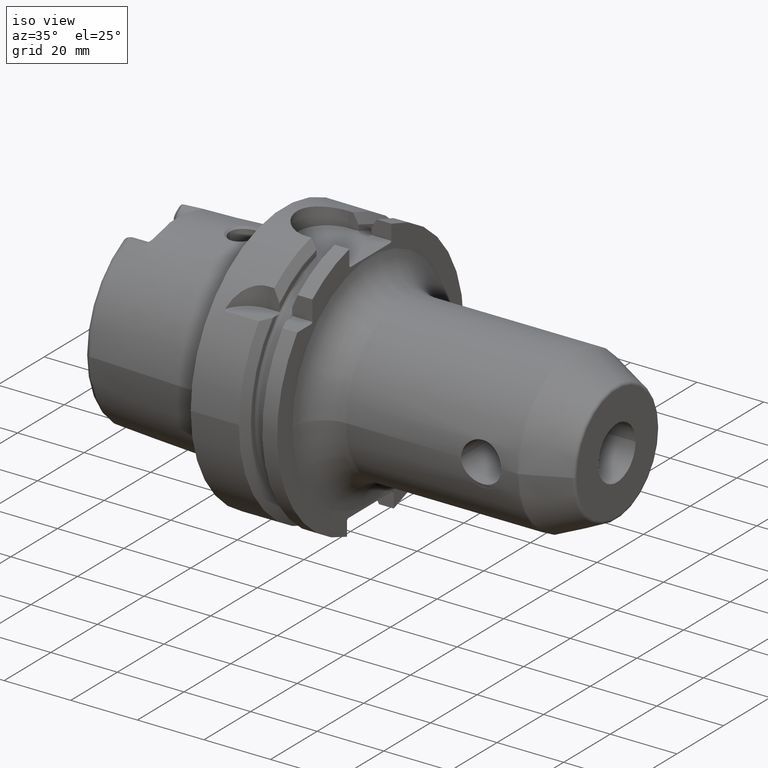
[diagram: clean part render]
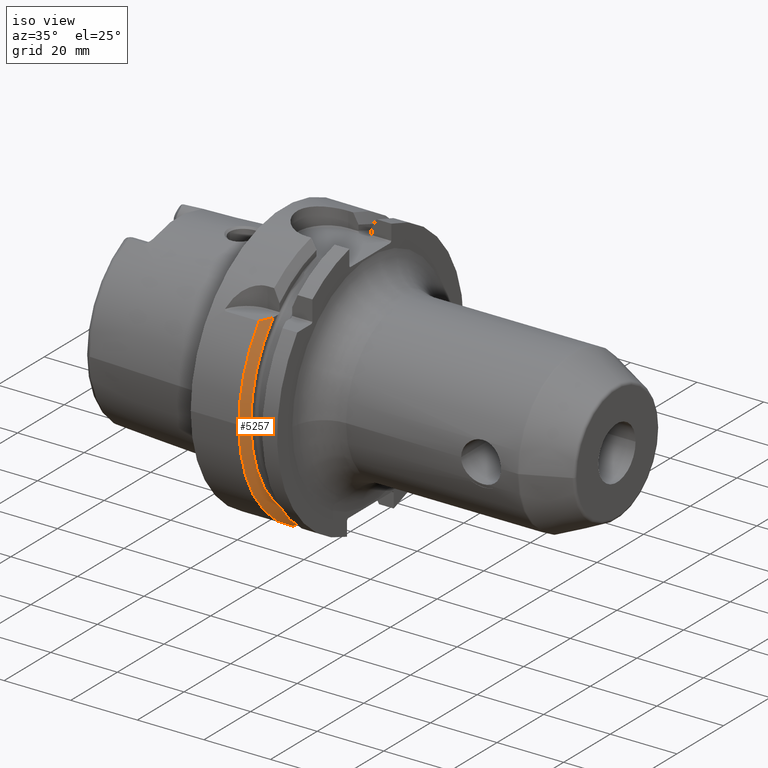
[diagram: same view with one face highlighted and labeled with its STEP entity id]
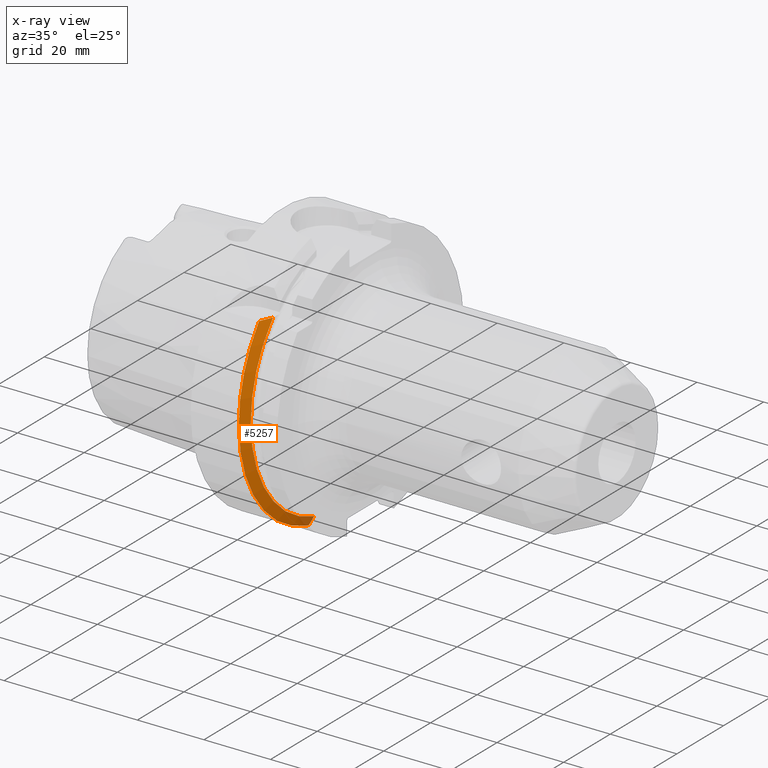
[diagram: x-ray of the same camera — body ghosted, the highlighted face saturated]
A machine part, iso view. The second image highlights one B-rep face of the part: STEP entity #5257.
The next image is the same camera in x-ray: the body ghosted, the highlighted face saturated — about 4% of this face is hidden behind the body in this view.
In plain terms, the highlighted conical surface has half-angle 60 deg.
Its self-contained STEP definition (entity closure, byte-faithful):
#1198=CARTESIAN_POINT('',(1.446372960121E1,0.E0,0.E0));
#1199=DIRECTION('',(1.E0,0.E0,0.E0));
#1200=DIRECTION('',(0.E0,-7.836124281174E-1,6.2125E-1));
#1201=AXIS2_PLACEMENT_3D('',#1198,#1199,#1200);
#1318=CARTESIAN_POINT('',(1.446372960121E1,0.E0,0.E0));
#1319=DIRECTION('',(1.E0,0.E0,0.E0));
#1320=DIRECTION('',(0.E0,-1.E0,0.E0));
#1321=AXIS2_PLACEMENT_3D('',#1318,#1319,#1320);
#1657=CARTESIAN_POINT('',(1.60875E1,0.E0,0.E0));
#1658=DIRECTION('',(1.E0,0.E0,0.E0));
#1659=DIRECTION('',(0.E0,-7.439507540774E-1,6.682344465138E-1));
#1660=AXIS2_PLACEMENT_3D('',#1657,#1658,#1659);
#1832=CARTESIAN_POINT('',(1.60875E1,-1.0021E1,-3.581191454645E1));
#1833=CARTESIAN_POINT('',(1.591452127694E1,-1.0021E1,-3.612303123567E1));
#1834=CARTESIAN_POINT('',(1.556360737199E1,-1.0021E1,-3.675359013845E1));
#1835=CARTESIAN_POINT('',(1.502255047087E1,-1.0021E1,-3.772406589711E1));
#1836=CARTESIAN_POINT('',(1.465167740260E1,-1.0021E1,-3.838814683469E1));
#1837=CARTESIAN_POINT('',(1.446372960121E1,-1.0021E1,-3.872440521170E1));
#1900=CARTESIAN_POINT('',(1.60875E1,-2.766570375902E1,2.485E1));
#1901=CARTESIAN_POINT('',(1.592149754546E1,-2.805218725119E1,2.485E1));
#1902=CARTESIAN_POINT('',(1.557999967762E1,-2.884000309139E1,2.485E1));
#1903=CARTESIAN_POINT('',(1.504046925873E1,-3.006277679610E1,2.485E1));
#1904=CARTESIAN_POINT('',(1.465940923842E1,-3.091197836735E1,2.485E1));
#1905=CARTESIAN_POINT('',(1.446372960121E1,-3.134449712469E1,2.485E1));
#3157=CARTESIAN_POINT('',(1.60875E1,-1.0021E1,-3.581191454645E1));
#3159=VERTEX_POINT('',#3157);
#3165=VERTEX_POINT('',#1837);
#3202=CARTESIAN_POINT('',(1.60875E1,-2.766570375902E1,2.485E1));
#3204=VERTEX_POINT('',#3202);
#3212=VERTEX_POINT('',#1905);
#3309=CARTESIAN_POINT('',(1.446372960121E1,-4.E1,0.E0));
#3310=VERTEX_POINT('',#3309);
#5243=CARTESIAN_POINT('',(1.527561480061E1,0.E0,0.E0));
#5244=DIRECTION('',(-1.E0,0.E0,0.E0));
#5245=DIRECTION('',(0.E0,1.E0,0.E0));
#5246=AXIS2_PLACEMENT_3D('',#5243,#5244,#5245);
#5247=CONICAL_SURFACE('',#5246,3.859377358474E1,6.E1);
#5248=ORIENTED_EDGE('',*,*,#5048,.T.);
#5250=ORIENTED_EDGE('',*,*,#5249,.T.);
#5251=ORIENTED_EDGE('',*,*,#4860,.F.);
#5252=ORIENTED_EDGE('',*,*,#4758,.F.);
#5254=ORIENTED_EDGE('',*,*,#5253,.F.);
#5255=EDGE_LOOP('',(#5248,#5250,#5251,#5252,#5254));
#5256=FACE_OUTER_BOUND('',#5255,.F.);
#5257=ADVANCED_FACE('',(#5256),#5247,.T.);
#1202=CIRCLE('',#1201,4.E1);
#1322=CIRCLE('',#1321,4.E1);
#1661=CIRCLE('',#1660,3.718754716948E1);
#1838=B_SPLINE_CURVE_WITH_KNOTS('',3,(#1832,#1833,#1834,#1835,#1836,#1837),
.UNSPECIFIED.,.F.,.F.,(4,1,1,4),(0.E0,3.333333333333E-1,6.666666666667E-1,1.E0),
.UNSPECIFIED.);
#1906=B_SPLINE_CURVE_WITH_KNOTS('',3,(#1900,#1901,#1902,#1903,#1904,#1905),
.UNSPECIFIED.,.F.,.F.,(4,1,1,4),(0.E0,3.333333333333E-1,6.666666666667E-1,1.E0),
.UNSPECIFIED.);
#4758=EDGE_CURVE('',#3212,#3310,#1202,.T.);
#4860=EDGE_CURVE('',#3310,#3165,#1322,.T.);
#5048=EDGE_CURVE('',#3204,#3159,#1661,.T.);
#5249=EDGE_CURVE('',#3159,#3165,#1838,.T.);
#5253=EDGE_CURVE('',#3204,#3212,#1906,.T.);